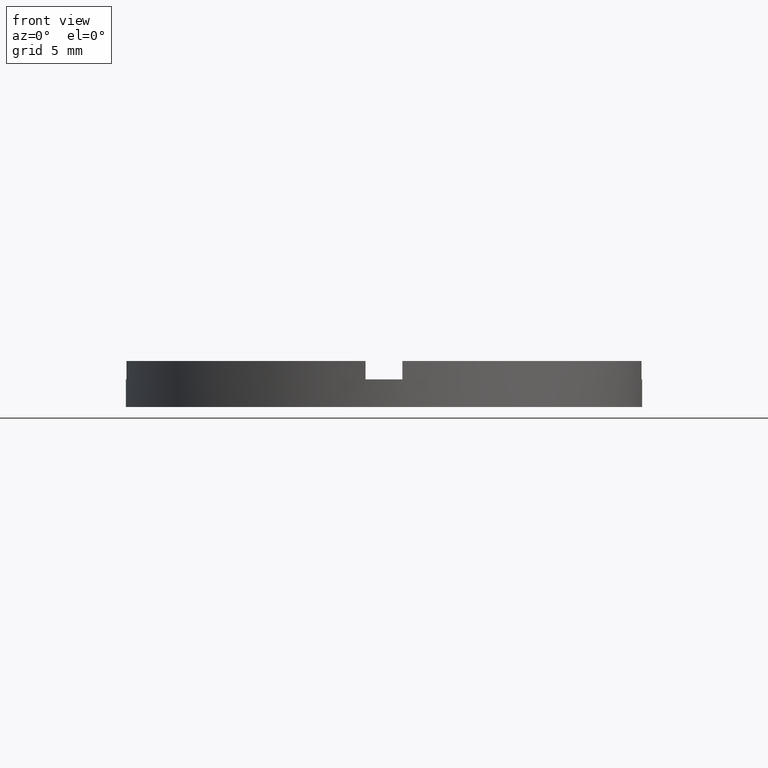
[diagram: clean part render]
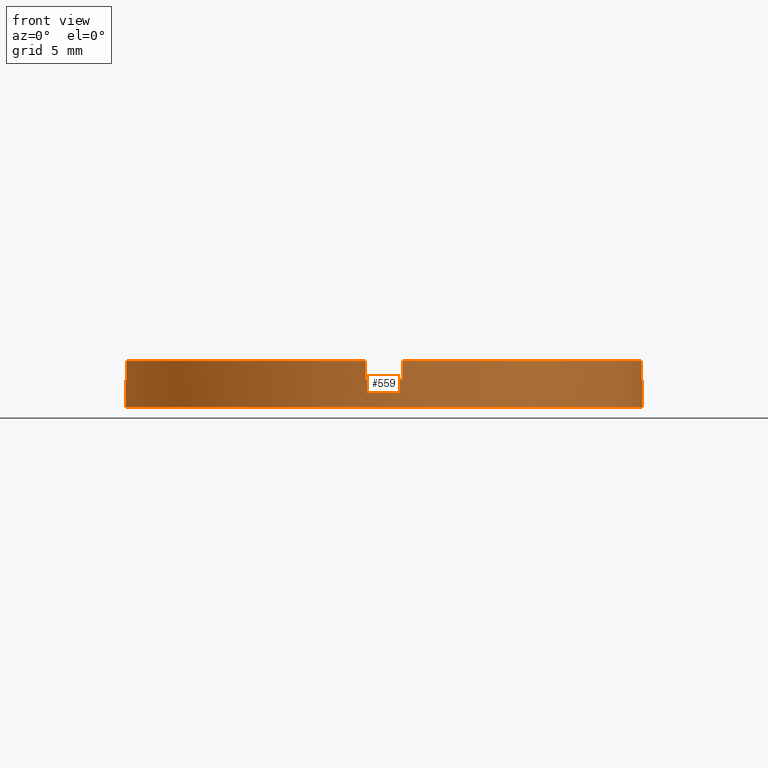
[diagram: same view with one face highlighted and labeled with its STEP entity id]
A machine part, front view. The second image highlights one B-rep face of the part: STEP entity #559.
In plain terms, the highlighted cylindrical surface (partial cylindrical patch) has radius 14 mm, axis along (-0, -0, -1).
Its self-contained STEP definition (entity closure, byte-faithful):
#5 = AXIS2_PLACEMENT_3D ( 'NONE', #74, #417, #493 ) ;
#16 = CARTESIAN_POINT ( 'NONE',  ( 0.9999999999998366862, -13.96424004376895311, 2.500000000000000000 ) ) ;
#18 = DIRECTION ( 'NONE',  ( -0.000000000000000000, -0.000000000000000000, -1.000000000000000000 ) ) ;
#24 = EDGE_CURVE ( 'NONE', #386, #441, #661, .T. ) ;
#29 = DIRECTION ( 'NONE',  ( 0.000000000000000000, 0.000000000000000000, 1.000000000000000000 ) ) ;
#33 = EDGE_CURVE ( 'NONE', #752, #155, #222, .T. ) ;
#37 = CARTESIAN_POINT ( 'NONE',  ( -13.96424004376894068, -1.000000000000022871, 1.500000000000000000 ) ) ;
#40 = CARTESIAN_POINT ( 'NONE',  ( 14.00000000000000000, 1.714505518806294638E-15, 1.500000000000000000 ) ) ;
#51 = CARTESIAN_POINT ( 'NONE',  ( -13.96424004376894068, -1.000000000000022871, 2.500000000000000000 ) ) ;
#52 = CARTESIAN_POINT ( 'NONE',  ( 0.000000000000000000, 0.000000000000000000, 1.500000000000000000 ) ) ;
#58 = EDGE_CURVE ( 'NONE', #441, #231, #734, .T. ) ;
#61 = DIRECTION ( 'NONE',  ( -1.000000000000000000, 0.000000000000000000, 0.000000000000000000 ) ) ;
#68 = EDGE_CURVE ( 'NONE', #389, #231, #485, .T. ) ;
#74 = CARTESIAN_POINT ( 'NONE',  ( 0.000000000000000000, 0.000000000000000000, 1.500000000000000000 ) ) ;
#76 = CARTESIAN_POINT ( 'NONE',  ( -14.00000000000000000, 0.000000000000000000, 1.500000000000000000 ) ) ;
#78 = EDGE_CURVE ( 'NONE', #386, #778, #739, .T. ) ;
#96 = CARTESIAN_POINT ( 'NONE',  ( -1.000000000000163203, -13.96424004376893002, 2.500000000000000000 ) ) ;
#102 = CARTESIAN_POINT ( 'NONE',  ( 0.000000000000000000, 0.000000000000000000, 2.500000000000000000 ) ) ;
#105 = ORIENTED_EDGE ( 'NONE', *, *, #508, .T. ) ;
#111 = CARTESIAN_POINT ( 'NONE',  ( 0.000000000000000000, 0.000000000000000000, 2.500000000000000000 ) ) ;
#112 = CIRCLE ( 'NONE', #116, 14.00000000000000000 ) ;
#116 = AXIS2_PLACEMENT_3D ( 'NONE', #111, #316, #359 ) ;
#153 = FACE_OUTER_BOUND ( 'NONE', #764, .T. ) ;
#155 = VERTEX_POINT ( 'NONE', #337 ) ;
#161 = CIRCLE ( 'NONE', #480, 14.00000000000000000 ) ;
#163 = CIRCLE ( 'NONE', #5, 14.00000000000000000 ) ;
#168 = VECTOR ( 'NONE', #18, 1000.000000000000000 ) ;
#186 = ORIENTED_EDGE ( 'NONE', *, *, #329, .F. ) ;
#222 = LINE ( 'NONE', #294, #737 ) ;
#225 = VECTOR ( 'NONE', #29, 1000.000000000000000 ) ;
#231 = VERTEX_POINT ( 'NONE', #343 ) ;
#248 = CARTESIAN_POINT ( 'NONE',  ( 13.96424004376893002, -1.000000000000159650, 2.500000000000000000 ) ) ;
#252 = ORIENTED_EDGE ( 'NONE', *, *, #68, .T. ) ;
#257 = CARTESIAN_POINT ( 'NONE',  ( -13.96424004376894068, -1.000000000000022871, 2.500000000000000000 ) ) ;
#263 = DIRECTION ( 'NONE',  ( 1.000000000000000000, 0.000000000000000000, 0.000000000000000000 ) ) ;
#268 = VERTEX_POINT ( 'NONE', #76 ) ;
#277 = DIRECTION ( 'NONE',  ( -0.000000000000000000, -0.000000000000000000, -1.000000000000000000 ) ) ;
#280 = VERTEX_POINT ( 'NONE', #96 ) ;
#284 = EDGE_CURVE ( 'NONE', #268, #773, #688, .T. ) ;
#294 = CARTESIAN_POINT ( 'NONE',  ( 0.9999999999998366862, -13.96424004376895311, 2.500000000000000000 ) ) ;
#316 = DIRECTION ( 'NONE',  ( 0.000000000000000000, 0.000000000000000000, 1.000000000000000000 ) ) ;
#317 = AXIS2_PLACEMENT_3D ( 'NONE', #52, #500, #640 ) ;
#319 = EDGE_CURVE ( 'NONE', #515, #280, #161, .T. ) ;
#320 = DIRECTION ( 'NONE',  ( -0.000000000000000000, -0.000000000000000000, -1.000000000000000000 ) ) ;
#329 = EDGE_CURVE ( 'NONE', #394, #155, #163, .T. ) ;
#337 = CARTESIAN_POINT ( 'NONE',  ( 0.9999999999998366862, -13.96424004376895311, 1.500000000000000000 ) ) ;
#343 = CARTESIAN_POINT ( 'NONE',  ( 14.00000000000000000, 1.714505518806294638E-15, 0.000000000000000000 ) ) ;
#346 = CARTESIAN_POINT ( 'NONE',  ( -14.00000000000000000, 0.000000000000000000, 0.000000000000000000 ) ) ;
#359 = DIRECTION ( 'NONE',  ( 1.000000000000000000, 0.000000000000000000, 0.000000000000000000 ) ) ;
#361 = EDGE_CURVE ( 'NONE', #515, #773, #450, .T. ) ;
#369 = ORIENTED_EDGE ( 'NONE', *, *, #319, .F. ) ;
#386 = VERTEX_POINT ( 'NONE', #577 ) ;
#389 = VERTEX_POINT ( 'NONE', #346 ) ;
#394 = VERTEX_POINT ( 'NONE', #487 ) ;
#404 = VECTOR ( 'NONE', #703, 1000.000000000000000 ) ;
#409 = ORIENTED_EDGE ( 'NONE', *, *, #24, .F. ) ;
#414 = LINE ( 'NONE', #637, #404 ) ;
#416 = CARTESIAN_POINT ( 'NONE',  ( 0.000000000000000000, 0.000000000000000000, 1.500000000000000000 ) ) ;
#417 = DIRECTION ( 'NONE',  ( -0.000000000000000000, 0.000000000000000000, 1.000000000000000000 ) ) ;
#419 = ORIENTED_EDGE ( 'NONE', *, *, #566, .F. ) ;
#441 = VERTEX_POINT ( 'NONE', #40 ) ;
#450 = LINE ( 'NONE', #51, #168 ) ;
#455 = ORIENTED_EDGE ( 'NONE', *, *, #284, .F. ) ;
#460 = ORIENTED_EDGE ( 'NONE', *, *, #33, .T. ) ;
#470 = EDGE_CURVE ( 'NONE', #394, #280, #475, .T. ) ;
#474 = VECTOR ( 'NONE', #565, 1000.000000000000000 ) ;
#475 = LINE ( 'NONE', #506, #719 ) ;
#480 = AXIS2_PLACEMENT_3D ( 'NONE', #102, #618, #263 ) ;
#485 = CIRCLE ( 'NONE', #526, 14.00000000000000000 ) ;
#487 = CARTESIAN_POINT ( 'NONE',  ( -1.000000000000163203, -13.96424004376893002, 1.500000000000000000 ) ) ;
#492 = DIRECTION ( 'NONE',  ( 0.000000000000000000, 0.000000000000000000, 1.000000000000000000 ) ) ;
#493 = DIRECTION ( 'NONE',  ( 1.000000000000000000, 0.000000000000000000, 0.000000000000000000 ) ) ;
#500 = DIRECTION ( 'NONE',  ( 0.000000000000000000, 0.000000000000000000, 1.000000000000000000 ) ) ;
#506 = CARTESIAN_POINT ( 'NONE',  ( -1.000000000000163203, -13.96424004376893002, 2.500000000000000000 ) ) ;
#508 = EDGE_CURVE ( 'NONE', #268, #389, #414, .T. ) ;
#512 = ORIENTED_EDGE ( 'NONE', *, *, #470, .T. ) ;
#515 = VERTEX_POINT ( 'NONE', #257 ) ;
#519 = ORIENTED_EDGE ( 'NONE', *, *, #78, .T. ) ;
#526 = AXIS2_PLACEMENT_3D ( 'NONE', #567, #603, #681 ) ;
#543 = DIRECTION ( 'NONE',  ( 0.000000000000000000, 0.000000000000000000, 1.000000000000000000 ) ) ;
#558 = CARTESIAN_POINT ( 'NONE',  ( 0.000000000000000000, 0.000000000000000000, 2.500000000000000000 ) ) ;
#559 = ADVANCED_FACE ( 'NONE', ( #153 ), #620, .T. ) ;
#565 = DIRECTION ( 'NONE',  ( -0.000000000000000000, -0.000000000000000000, -1.000000000000000000 ) ) ;
#566 = EDGE_CURVE ( 'NONE', #752, #778, #112, .T. ) ;
#567 = CARTESIAN_POINT ( 'NONE',  ( 0.000000000000000000, 0.000000000000000000, 0.000000000000000000 ) ) ;
#577 = CARTESIAN_POINT ( 'NONE',  ( 13.96424004376893002, -1.000000000000159650, 1.500000000000000000 ) ) ;
#596 = AXIS2_PLACEMENT_3D ( 'NONE', #416, #492, #709 ) ;
#603 = DIRECTION ( 'NONE',  ( 0.000000000000000000, 0.000000000000000000, 1.000000000000000000 ) ) ;
#605 = CARTESIAN_POINT ( 'NONE',  ( 13.96424004376893002, -1.000000000000159650, 2.500000000000000000 ) ) ;
#607 = ORIENTED_EDGE ( 'NONE', *, *, #361, .T. ) ;
#617 = CARTESIAN_POINT ( 'NONE',  ( 14.00000000000000000, 1.714505518806294638E-15, 2.500000000000000000 ) ) ;
#618 = DIRECTION ( 'NONE',  ( 0.000000000000000000, 0.000000000000000000, 1.000000000000000000 ) ) ;
#620 = CYLINDRICAL_SURFACE ( 'NONE', #677, 14.00000000000000000 ) ;
#637 = CARTESIAN_POINT ( 'NONE',  ( -14.00000000000000000, 0.000000000000000000, 2.500000000000000000 ) ) ;
#640 = DIRECTION ( 'NONE',  ( 1.000000000000000000, 0.000000000000000000, 0.000000000000000000 ) ) ;
#661 = CIRCLE ( 'NONE', #596, 14.00000000000000000 ) ;
#677 = AXIS2_PLACEMENT_3D ( 'NONE', #558, #277, #61 ) ;
#681 = DIRECTION ( 'NONE',  ( 1.000000000000000000, 0.000000000000000000, 0.000000000000000000 ) ) ;
#688 = CIRCLE ( 'NONE', #317, 14.00000000000000000 ) ;
#703 = DIRECTION ( 'NONE',  ( -0.000000000000000000, -0.000000000000000000, -1.000000000000000000 ) ) ;
#709 = DIRECTION ( 'NONE',  ( 1.000000000000000000, 0.000000000000000000, 0.000000000000000000 ) ) ;
#719 = VECTOR ( 'NONE', #543, 1000.000000000000000 ) ;
#734 = LINE ( 'NONE', #617, #474 ) ;
#737 = VECTOR ( 'NONE', #320, 1000.000000000000000 ) ;
#739 = LINE ( 'NONE', #605, #225 ) ;
#752 = VERTEX_POINT ( 'NONE', #16 ) ;
#764 = EDGE_LOOP ( 'NONE', ( #779, #409, #519, #419, #460, #186, #512, #369, #607, #455, #105, #252 ) ) ;
#773 = VERTEX_POINT ( 'NONE', #37 ) ;
#778 = VERTEX_POINT ( 'NONE', #248 ) ;
#779 = ORIENTED_EDGE ( 'NONE', *, *, #58, .F. ) ;